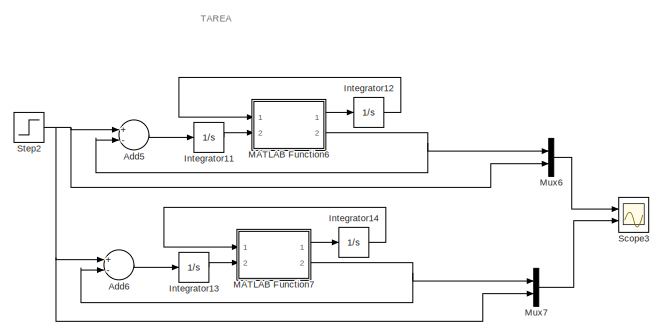
[diagram: root canvas - part 1/2, top right region]
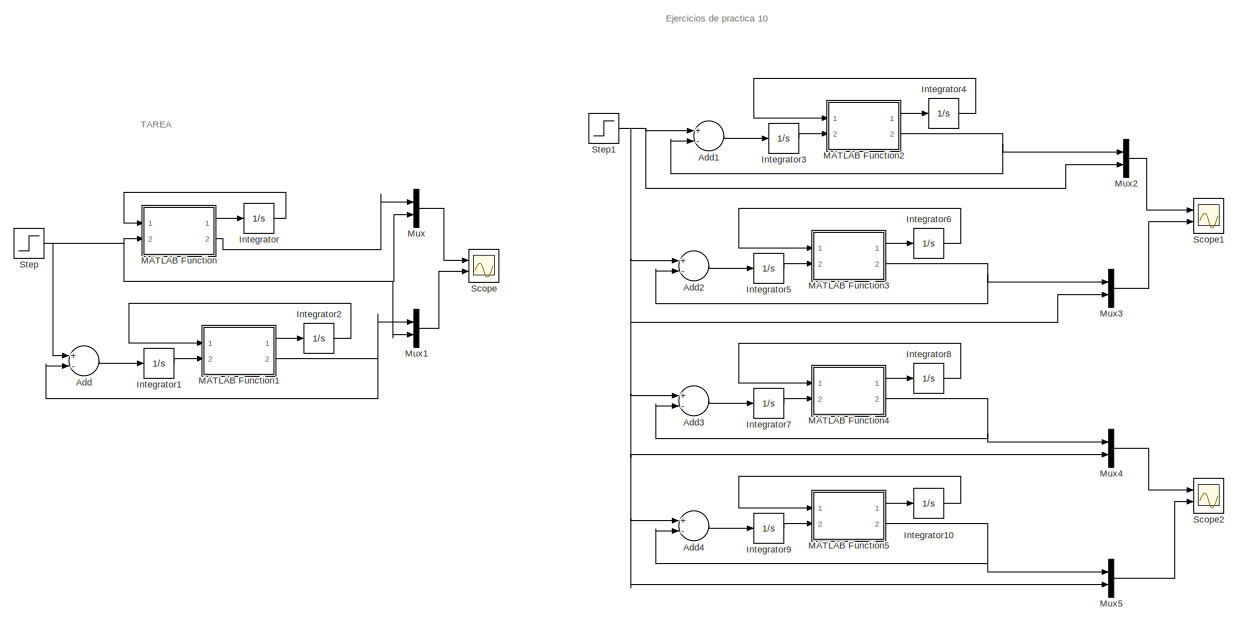
[diagram: root canvas - part 2/2, left side, full height]
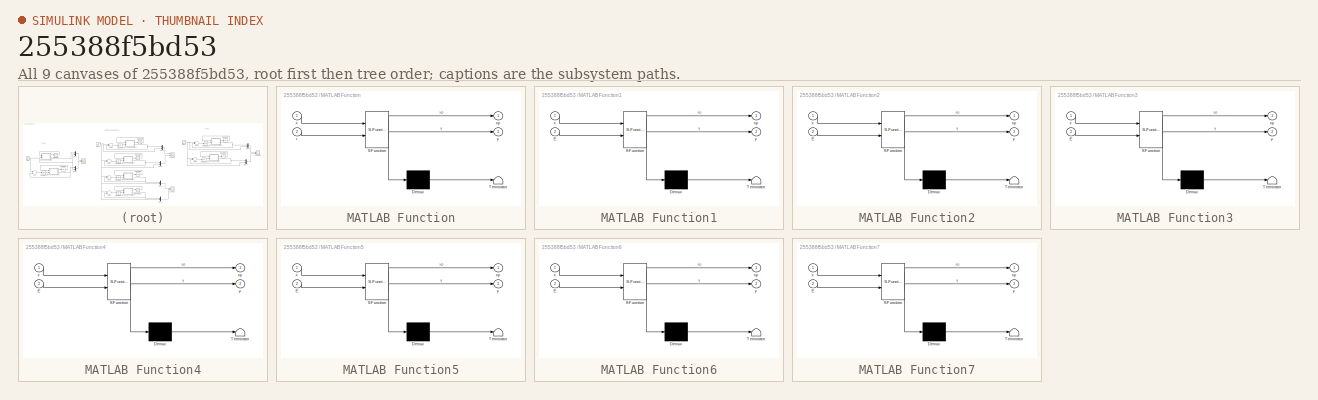
[diagram: thumbnail index - all 9 canvases of the model, root first then tree order]
MODEL slx_255388f5bd53
KIND model
CONFIG AbsTol = auto
CONFIG FixedStep = 1e-3
CONFIG MaxStep = auto
CONFIG MinStep = auto
CONFIG RelTol = 1e-3
CONFIG SampleTimeConstraint = Unconstrained
CONFIG Solver = ode3
CONFIG SolverMode = Auto
CONFIG SolverName = ode3
CONFIG StartTime = 0.0
CONFIG StopTime = 10.0
BLOCK [Sum] Add
  InputSameDT = off
  Inputs = +-
  OutDataTypeStr = Inherit: Inherit via internal rule
  Ports = [2, 1]
  SaturateOnIntegerOverflow = off
BLOCK [Sum] Add1
  InputSameDT = off
  Inputs = +-
  OutDataTypeStr = Inherit: Inherit via internal rule
  Ports = [2, 1]
  SaturateOnIntegerOverflow = off
BLOCK [Sum] Add2
  InputSameDT = off
  Inputs = +-
  OutDataTypeStr = Inherit: Inherit via internal rule
  Ports = [2, 1]
  SaturateOnIntegerOverflow = off
BLOCK [Sum] Add3
  InputSameDT = off
  Inputs = +-
  OutDataTypeStr = Inherit: Inherit via internal rule
  Ports = [2, 1]
  SaturateOnIntegerOverflow = off
BLOCK [Sum] Add4
  InputSameDT = off
  Inputs = +-
  OutDataTypeStr = Inherit: Inherit via internal rule
  Ports = [2, 1]
  SaturateOnIntegerOverflow = off
BLOCK [Sum] Add5
  InputSameDT = off
  Inputs = +-
  OutDataTypeStr = Inherit: Inherit via internal rule
  Ports = [2, 1]
  SaturateOnIntegerOverflow = off
BLOCK [Sum] Add6
  InputSameDT = off
  Inputs = +-
  OutDataTypeStr = Inherit: Inherit via internal rule
  Ports = [2, 1]
  SaturateOnIntegerOverflow = off
BLOCK [Integrator] Integrator
  InitialCondition = [0 0 0]
  Ports = [1, 1]
BLOCK [Integrator] Integrator1
  Ports = [1, 1]
BLOCK [Integrator] Integrator10
  InitialCondition = [0 0 0 0]
  Ports = [1, 1]
BLOCK [Integrator] Integrator11
  Ports = [1, 1]
BLOCK [Integrator] Integrator12
  InitialCondition = [0 0]
  Ports = [1, 1]
BLOCK [Integrator] Integrator13
  Ports = [1, 1]
BLOCK [Integrator] Integrator14
  InitialCondition = [0 0]
  Ports = [1, 1]
BLOCK [Integrator] Integrator2
  InitialCondition = [0 0 0]
  Ports = [1, 1]
BLOCK [Integrator] Integrator3
  Ports = [1, 1]
BLOCK [Integrator] Integrator4
  InitialCondition = [0 0 0 0 0 0]
  Ports = [1, 1]
BLOCK [Integrator] Integrator5
  Ports = [1, 1]
BLOCK [Integrator] Integrator6
  InitialCondition = [0 0 0 0 0]
  Ports = [1, 1]
BLOCK [Integrator] Integrator7
  Ports = [1, 1]
BLOCK [Integrator] Integrator8
  InitialCondition = [0 0 0]
  Ports = [1, 1]
BLOCK [Integrator] Integrator9
  Ports = [1, 1]
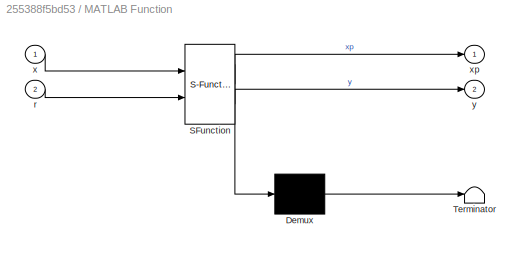
BLOCK [SubSystem] MATLAB Function
  ErrorFcn = Stateflow.Translate.translate
  PermitHierarchicalResolution = ExplicitOnly
  Ports = [2, 2]
  RequestExecContextInheritance = off
  SFBlockType = MATLAB Function
  TreatAsAtomicUnit = on
BLOCK [Demux] MATLAB Function/ Demux 
  Outputs = 1
  Ports = [1, 1]
BLOCK [S-Function] MATLAB Function/ SFunction 
  EnableBusSupport = on
  FunctionName = sf_sfun
  PortCounts = [2 3]
  Ports = [2, 3]
  Tag = Stateflow S-Function simulacion1 2
BLOCK [Terminator] MATLAB Function/ Terminator 
BLOCK [Inport] MATLAB Function/r
  IconDisplay = Port number
  Port = 2
BLOCK [Inport] MATLAB Function/x
  IconDisplay = Port number
BLOCK [Outport] MATLAB Function/xp
  IconDisplay = Port number
BLOCK [Outport] MATLAB Function/y
  IconDisplay = Port number
  Port = 2
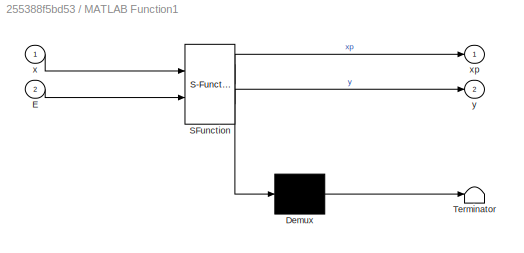
BLOCK [SubSystem] MATLAB Function1
  ErrorFcn = Stateflow.Translate.translate
  PermitHierarchicalResolution = ExplicitOnly
  Ports = [2, 2]
  RequestExecContextInheritance = off
  SFBlockType = MATLAB Function
  TreatAsAtomicUnit = on
BLOCK [Demux] MATLAB Function1/ Demux 
  Outputs = 1
  Ports = [1, 1]
BLOCK [S-Function] MATLAB Function1/ SFunction 
  EnableBusSupport = on
  FunctionName = sf_sfun
  PortCounts = [2 3]
  Ports = [2, 3]
  Tag = Stateflow S-Function simulacion1 1
BLOCK [Terminator] MATLAB Function1/ Terminator 
BLOCK [Inport] MATLAB Function1/E
  IconDisplay = Port number
  Port = 2
BLOCK [Inport] MATLAB Function1/x
  IconDisplay = Port number
BLOCK [Outport] MATLAB Function1/xp
  IconDisplay = Port number
BLOCK [Outport] MATLAB Function1/y
  IconDisplay = Port number
  Port = 2
BLOCK [SubSystem] MATLAB Function2
  ErrorFcn = Stateflow.Translate.translate
  PermitHierarchicalResolution = ExplicitOnly
  Ports = [2, 2]
  RequestExecContextInheritance = off
  SFBlockType = MATLAB Function
  TreatAsAtomicUnit = on
BLOCK [Demux] MATLAB Function2/ Demux 
  Outputs = 1
  Ports = [1, 1]
BLOCK [S-Function] MATLAB Function2/ SFunction 
  EnableBusSupport = on
  FunctionName = sf_sfun
  PortCounts = [2 3]
  Ports = [2, 3]
  Tag = Stateflow S-Function simulacion1 3
BLOCK [Terminator] MATLAB Function2/ Terminator 
BLOCK [Inport] MATLAB Function2/E
  IconDisplay = Port number
  Port = 2
BLOCK [Inport] MATLAB Function2/x
  IconDisplay = Port number
BLOCK [Outport] MATLAB Function2/xp
  IconDisplay = Port number
BLOCK [Outport] MATLAB Function2/y
  IconDisplay = Port number
  Port = 2
BLOCK [SubSystem] MATLAB Function3
  ErrorFcn = Stateflow.Translate.translate
  PermitHierarchicalResolution = ExplicitOnly
  Ports = [2, 2]
  RequestExecContextInheritance = off
  SFBlockType = MATLAB Function
  TreatAsAtomicUnit = on
BLOCK [Demux] MATLAB Function3/ Demux 
  Outputs = 1
  Ports = [1, 1]
BLOCK [S-Function] MATLAB Function3/ SFunction 
  EnableBusSupport = on
  FunctionName = sf_sfun
  PortCounts = [2 3]
  Ports = [2, 3]
  Tag = Stateflow S-Function simulacion1 4
BLOCK [Terminator] MATLAB Function3/ Terminator 
BLOCK [Inport] MATLAB Function3/E
  IconDisplay = Port number
  Port = 2
BLOCK [Inport] MATLAB Function3/x
  IconDisplay = Port number
BLOCK [Outport] MATLAB Function3/xp
  IconDisplay = Port number
BLOCK [Outport] MATLAB Function3/y
  IconDisplay = Port number
  Port = 2
BLOCK [SubSystem] MATLAB Function4
  ErrorFcn = Stateflow.Translate.translate
  PermitHierarchicalResolution = ExplicitOnly
  Ports = [2, 2]
  RequestExecContextInheritance = off
  SFBlockType = MATLAB Function
  TreatAsAtomicUnit = on
BLOCK [Demux] MATLAB Function4/ Demux 
  Outputs = 1
  Ports = [1, 1]
BLOCK [S-Function] MATLAB Function4/ SFunction 
  EnableBusSupport = on
  FunctionName = sf_sfun
  PortCounts = [2 3]
  Ports = [2, 3]
  Tag = Stateflow S-Function simulacion1 5
BLOCK [Terminator] MATLAB Function4/ Terminator 
BLOCK [Inport] MATLAB Function4/E
  IconDisplay = Port number
  Port = 2
BLOCK [Inport] MATLAB Function4/x
  IconDisplay = Port number
BLOCK [Outport] MATLAB Function4/xp
  IconDisplay = Port number
BLOCK [Outport] MATLAB Function4/y
  IconDisplay = Port number
  Port = 2
BLOCK [SubSystem] MATLAB Function5
  ErrorFcn = Stateflow.Translate.translate
  PermitHierarchicalResolution = ExplicitOnly
  Ports = [2, 2]
  RequestExecContextInheritance = off
  SFBlockType = MATLAB Function
  TreatAsAtomicUnit = on
BLOCK [Demux] MATLAB Function5/ Demux 
  Outputs = 1
  Ports = [1, 1]
BLOCK [S-Function] MATLAB Function5/ SFunction 
  EnableBusSupport = on
  FunctionName = sf_sfun
  PortCounts = [2 3]
  Ports = [2, 3]
  Tag = Stateflow S-Function simulacion1 6
BLOCK [Terminator] MATLAB Function5/ Terminator 
BLOCK [Inport] MATLAB Function5/E
  IconDisplay = Port number
  Port = 2
BLOCK [Inport] MATLAB Function5/x
  IconDisplay = Port number
BLOCK [Outport] MATLAB Function5/xp
  IconDisplay = Port number
BLOCK [Outport] MATLAB Function5/y
  IconDisplay = Port number
  Port = 2
BLOCK [SubSystem] MATLAB Function6
  ErrorFcn = Stateflow.Translate.translate
  PermitHierarchicalResolution = ExplicitOnly
  Ports = [2, 2]
  RequestExecContextInheritance = off
  SFBlockType = MATLAB Function
  TreatAsAtomicUnit = on
BLOCK [Demux] MATLAB Function6/ Demux 
  Outputs = 1
  Ports = [1, 1]
BLOCK [S-Function] MATLAB Function6/ SFunction 
  EnableBusSupport = on
  FunctionName = sf_sfun
  PortCounts = [2 3]
  Ports = [2, 3]
  Tag = Stateflow S-Function simulacion1 7
BLOCK [Terminator] MATLAB Function6/ Terminator 
BLOCK [Inport] MATLAB Function6/E
  IconDisplay = Port number
  Port = 2
BLOCK [Inport] MATLAB Function6/x
  IconDisplay = Port number
BLOCK [Outport] MATLAB Function6/xp
  IconDisplay = Port number
BLOCK [Outport] MATLAB Function6/y
  IconDisplay = Port number
  Port = 2
BLOCK [SubSystem] MATLAB Function7
  ErrorFcn = Stateflow.Translate.translate
  PermitHierarchicalResolution = ExplicitOnly
  Ports = [2, 2]
  RequestExecContextInheritance = off
  SFBlockType = MATLAB Function
  TreatAsAtomicUnit = on
BLOCK [Demux] MATLAB Function7/ Demux 
  Outputs = 1
  Ports = [1, 1]
BLOCK [S-Function] MATLAB Function7/ SFunction 
  EnableBusSupport = on
  FunctionName = sf_sfun
  PortCounts = [2 3]
  Ports = [2, 3]
  Tag = Stateflow S-Function simulacion1 8
BLOCK [Terminator] MATLAB Function7/ Terminator 
BLOCK [Inport] MATLAB Function7/E
  IconDisplay = Port number
  Port = 2
BLOCK [Inport] MATLAB Function7/x
  IconDisplay = Port number
BLOCK [Outport] MATLAB Function7/xp
  IconDisplay = Port number
BLOCK [Outport] MATLAB Function7/y
  IconDisplay = Port number
  Port = 2
BLOCK [Mux] Mux
  DisplayOption = bar
  Inputs = 2
  Ports = [2, 1]
BLOCK [Mux] Mux1
  DisplayOption = bar
  Inputs = 2
  Ports = [2, 1]
BLOCK [Mux] Mux2
  DisplayOption = bar
  Inputs = 2
  Ports = [2, 1]
BLOCK [Mux] Mux3
  DisplayOption = bar
  Inputs = 2
  Ports = [2, 1]
BLOCK [Mux] Mux4
  DisplayOption = bar
  Inputs = 2
  Ports = [2, 1]
BLOCK [Mux] Mux5
  DisplayOption = bar
  Inputs = 2
  Ports = [2, 1]
BLOCK [Mux] Mux6
  DisplayOption = bar
  Inputs = 2
  Ports = [2, 1]
BLOCK [Mux] Mux7
  DisplayOption = bar
  Inputs = 2
  Ports = [2, 1]
BLOCK [Scope] Scope
  Floating = off
  LimitDataPoints = off
  NumInputPorts = 2
  Ports = [2]
  YMax = 5~5
  YMin = -5~-5
  ZoomMode = yonly
BLOCK [Scope] Scope1
  Floating = off
  LimitDataPoints = off
  NumInputPorts = 2
  Ports = [2]
  SaveName = ScopeData1
  YMax = 5~5
  YMin = -5~-5
  ZoomMode = yonly
BLOCK [Scope] Scope2
  Floating = off
  LimitDataPoints = off
  NumInputPorts = 2
  Ports = [2]
  SaveName = ScopeData2
  YMax = 5~5
  YMin = -5~-5
  ZoomMode = yonly
BLOCK [Scope] Scope3
  Floating = off
  LimitDataPoints = off
  NumInputPorts = 2
  Ports = [2]
  SaveName = ScopeData3
  YMax = 5~5
  YMin = -5~-5
  ZoomMode = xonly
BLOCK [Step] Step
  SampleTime = 0
BLOCK [Step] Step1
  SampleTime = 0
BLOCK [Step] Step2
  SampleTime = 0
ANNOTATION (root): Ejercicios de practica 10
ANNOTATION (root): TAREA
LINE Add1:1 -> Integrator3:1
LINE Add2:1 -> Integrator5:1
LINE Add3:1 -> Integrator7:1
LINE Add4:1 -> Integrator9:1
LINE Add5:1 -> Integrator11:1
LINE Add6:1 -> Integrator13:1
LINE Add:1 -> Integrator1:1
LINE Integrator10:1 -> MATLAB Function5:1
LINE Integrator11:1 -> MATLAB Function6:2
LINE Integrator12:1 -> MATLAB Function6:1
LINE Integrator13:1 -> MATLAB Function7:2
LINE Integrator14:1 -> MATLAB Function7:1
LINE Integrator1:1 -> MATLAB Function1:2
LINE Integrator2:1 -> MATLAB Function1:1
LINE Integrator3:1 -> MATLAB Function2:2
LINE Integrator4:1 -> MATLAB Function2:1
LINE Integrator5:1 -> MATLAB Function3:2
LINE Integrator6:1 -> MATLAB Function3:1
LINE Integrator7:1 -> MATLAB Function4:2
LINE Integrator8:1 -> MATLAB Function4:1
LINE Integrator9:1 -> MATLAB Function5:2
LINE Integrator:1 -> MATLAB Function:1
LINE MATLAB Function1:1 -> Integrator2:1
NET MATLAB Function1:2 -> Add:2, Mux1:1
LINE MATLAB Function2:1 -> Integrator4:1
NET MATLAB Function2:2 -> Add1:2, Mux2:1
LINE MATLAB Function3:1 -> Integrator6:1
NET MATLAB Function3:2 -> Add2:2, Mux3:1
LINE MATLAB Function4:1 -> Integrator8:1
NET MATLAB Function4:2 -> Add3:2, Mux4:1
LINE MATLAB Function5:1 -> Integrator10:1
NET MATLAB Function5:2 -> Add4:2, Mux5:1
LINE MATLAB Function6:1 -> Integrator12:1
NET MATLAB Function6:2 -> Add5:2, Mux6:1
LINE MATLAB Function7:1 -> Integrator14:1
NET MATLAB Function7:2 -> Add6:2, Mux7:1
LINE MATLAB Function:1 -> Integrator:1
LINE MATLAB Function:2 -> Mux:1
LINE Mux1:1 -> Scope:2
LINE Mux2:1 -> Scope1:1
LINE Mux3:1 -> Scope1:2
LINE Mux4:1 -> Scope2:1
LINE Mux5:1 -> Scope2:2
LINE Mux6:1 -> Scope3:1
LINE Mux7:1 -> Scope3:2
LINE Mux:1 -> Scope:1
NET Step1:1 -> Add1:1, Add2:1, Add3:1, Add4:1, Mux2:2, Mux3:2, Mux4:2, Mux5:2
NET Step2:1 -> Add5:1, Add6:1, Mux6:2, Mux7:2
NET Step:1 -> Add:1, MATLAB Function:2, Mux1:2, Mux:2
note: NET lines group one-source signal fan-out (src -> all destinations, sorted); 1:1 wires keep LINE
CHART MATLAB Function1 states=1 transitions=1
  STATE_LABEL 'eML_blk_kernel()'
  STATE_LABEL "SCRIPT:\nfunction [xp,y] = fcn(x,E)\n%#codegen\nK=[73.3787,17.6351,.3649];\nKI=285.7143;\nu=E*KI-K*x;\nA=[0 1 0;0 0 1;-1 -5 -6];\nB=[0 1 1]';\nC=[1 0 0];\nxp=A*x+B*u;\ny = C*x;"
CHART MATLAB Function states=1 transitions=1
  STATE_LABEL 'eML_blk_kernel()'
  STATE_LABEL "SCRIPT:\nfunction [xp,y] = fcn(x,r)\n%#codegen\nK=[200 55 8];\nu=r*K(1)-K*x;\nA=[0 1 0;0 0 1;0 -5 -6];\nB=[0 0 1]';\nC=[1 0 0];\nxp=A*x+B*u;\ny = C*x;"
CHART MATLAB Function2 states=1 transitions=1
  STATE_LABEL 'eML_blk_kernel()'
  STATE_LABEL "SCRIPT:\nfunction [xp,y] = fcn(x,E)\n%#codegen\nK=[-0.5493 -0.1074 -0.3051 0.0024 1.4380 0.3843]*1e+4;\nKI=7.8125e+03;\nu=E*KI-K*x;\nA=[0 1 0 0 0 0;-1 -1.5 1 .5 0 .5;0 0 0 1 0 0;2 1 -2 -2 0 1;0 0 0 0 0 1;0 1 0 1 0 -3];\nB=[0 0 0 1 0 0]';\nC=[0 0 0 0 1 0];\nxp=A*x+B*u;\ny = C*x;"
CHART MATLAB Function3 states=1 transitions=1
  STATE_LABEL 'eML_blk_kernel()'
  STATE_LABEL "SCRIPT:\nfunction [xp,y] = fcn(x,E)\n%#codegen\nK=[0.3784 0.0002 -0.2148 -0.4714 -1.2515]*1e+7;\nKI=1638400;\nu=E*KI-K*x;\nA=[0 1 0 0 0;-9/50 0 3/5 0 0;0 0 0 1 0;3/10 0 -1 -1 0;0 3/10 0 0 0];\nB=[0 1/50 0 0 0]';\nC=[1 0 0 0 0];\nxp=A*x+B*u;\ny = C*x;"
CHART MATLAB Function4 states=1 transitions=1
  STATE_LABEL 'eML_blk_kernel()'
  STATE_LABEL "SCRIPT:\nfunction [xp,y] = fcn(x,E)\n%#codegen\nK=[-276.1000 468.1000 0];\nKI=192.0000;\nu=E*KI-K*x;\nA=[-25/18 0 0;-5/6 0 0;-1/12 0 0];\nB=[25/18 5/6 1/12]';\nC=[0 0 1];\nxp=A*x+B*u;\ny = C*x;"
CHART MATLAB Function5 states=1 transitions=1
  STATE_LABEL 'eML_blk_kernel()'
  STATE_LABEL "SCRIPT:\nfunction [xp,y] = fcn(x,E)\n%#codegen\nK=[-0.7604 0.0770 4.1934 3.4330]*1e+3;\nKI=3.5100e+03;\nu=E*KI-K*x;\nA=[0 1 0 0;-11/26 -40/13 0 0;0 1/10 0 0;0 1/5 0 0];\nB=[0 1/13 0 0]';\nC=[0 0 1 0];\nxp=A*x+B*u;\ny = C*x;"
CHART MATLAB Function6 states=1 transitions=1
  STATE_LABEL 'eML_blk_kernel()'
  STATE_LABEL "SCRIPT:\nfunction [xp,y] = fcn(x,E)\n%#codegen\nK=[820.0281 51.0000];\nKI=7.3211e+03;\nu=E*KI-K*x;\nA=[0 1;-3 -5];\nB=[0 1]';\nC=[1 0];\nxp=A*x+B*u;\ny = C*x;"
CHART MATLAB Function7 states=1 transitions=1
  STATE_LABEL 'eML_blk_kernel()'
  STATE_LABEL "SCRIPT:\nfunction [xp,y] = fcn(x,E)\n%#codegen\nK=[5.1354 0.1310]*1.0e+03;\nKI=1.1444e+05;\nu=E*KI-K*x;\nA=[0 1;-7 -9];\nB=[0 1]';\nC=[1 0];\nxp=A*x+B*u;\ny = C*x;"
